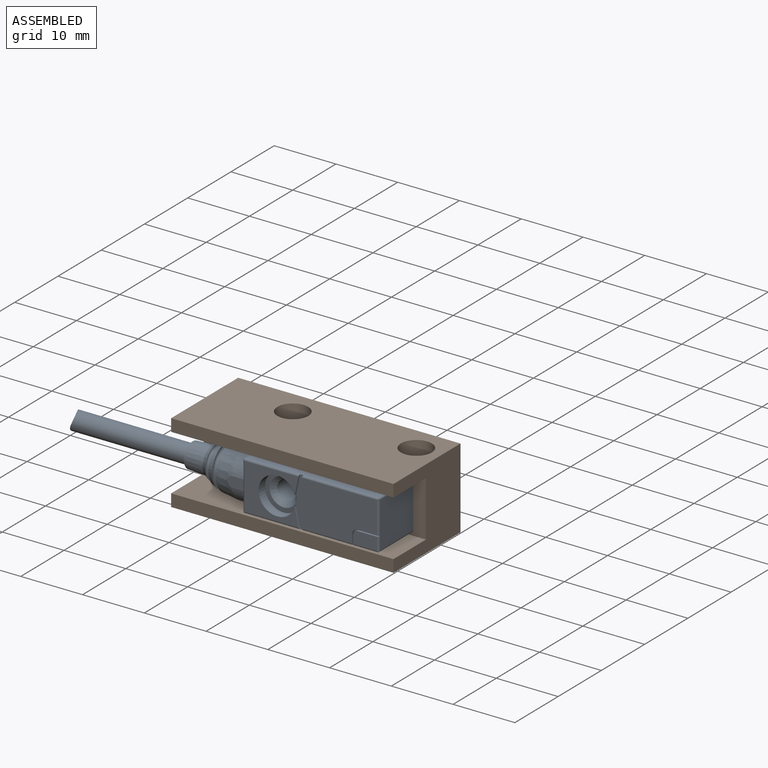
[diagram: assembled view]
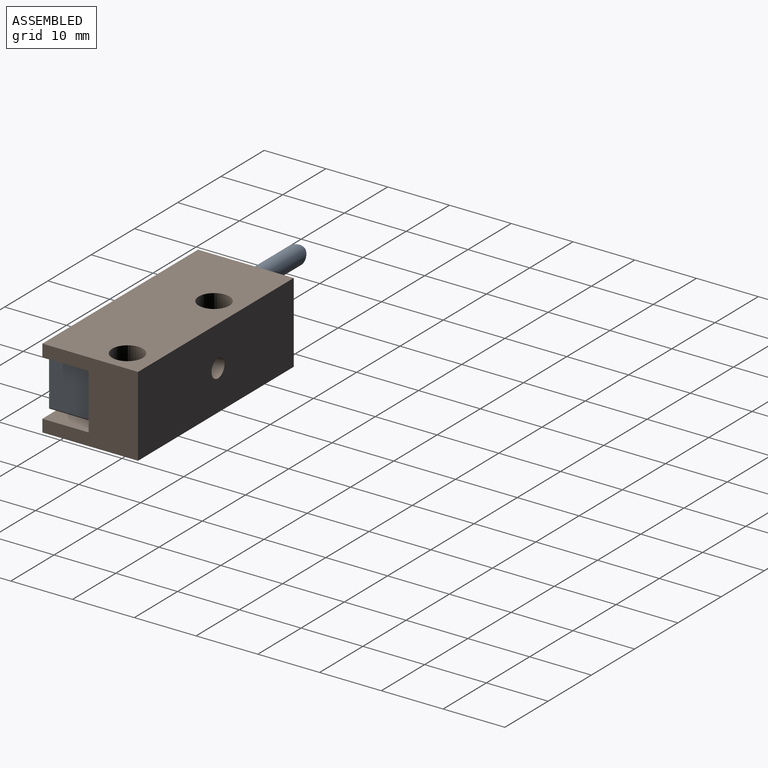
[diagram: assembled view, second angle]
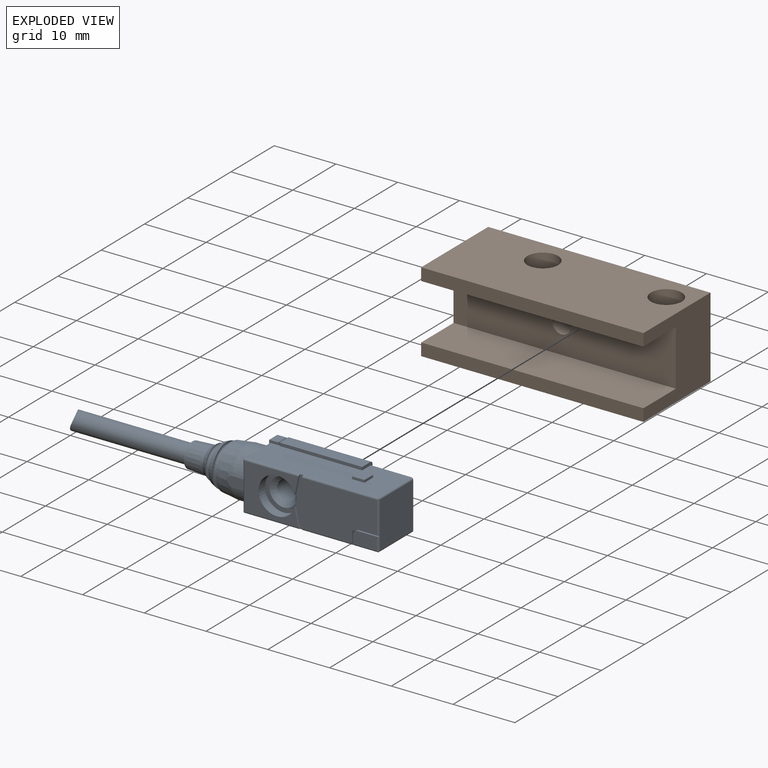
[diagram: exploded view]
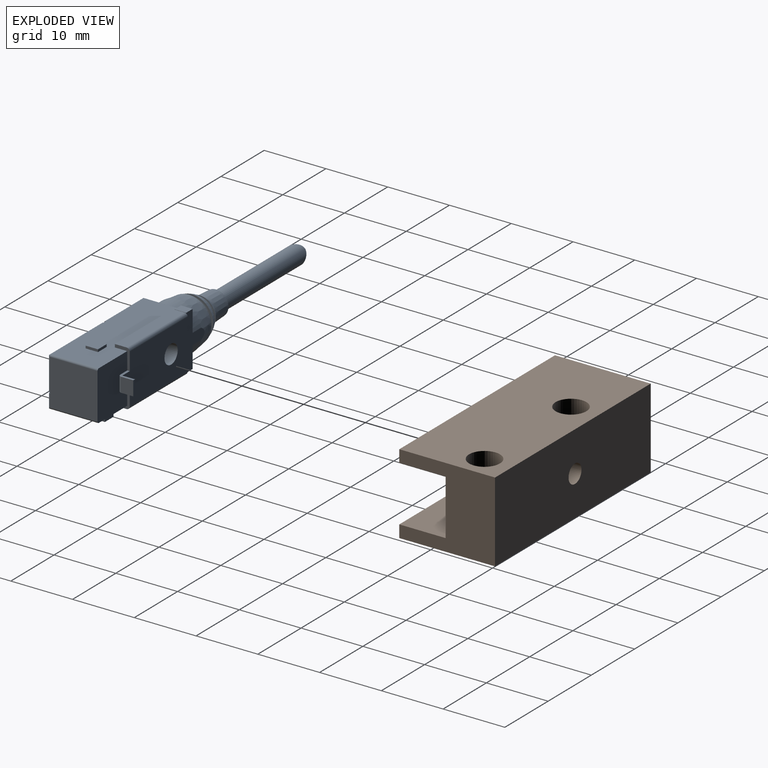
[diagram: exploded view, second angle]
ASSEMBLY  parts=2 mates=2
PART A: 95 faces, bbox 52.4x10.8x9.4 mm
  f0: torus R=3.14mm, axis (1,0,0), area 22.7mm2, adj f67,f68
  f1: torus R=2.56mm, axis (1,0,0), area 18.2mm2, adj f65,f66
  f2: cylinder r=3mm len=6mm, axis (0,1,0), area 27.7mm2, adj f78,f79,f82,f86,f87
  f3: cylinder r=1.5mm len=19mm, axis (1,0,0), area 174.9mm2, adj f8,f70
  f4: cone r=3.82mm half-angle=7.6deg, axis (1,0,0), area 64.2mm2, adj f61,f64,f68,f69,f92
  f5: cone r=3.23mm half-angle=22deg, axis (1,0,0), area 17.4mm2, adj f66,f67
  f6: cone r=2.41mm half-angle=32.3deg, axis (1,0,0), area 13.8mm2, adj f7,f65
  f7: cone r=2.08mm half-angle=3deg, axis (1,0,0), area 41.1mm2, adj f6,f70
  f8: cylinder r=2.1mm len=4.23mm, axis (0,-0.71,0.71), area 6.7mm2, adj f3
  f9: cylinder r=0.48mm len=13.4mm, axis (1,0,0), area 10.7mm2, adj f21,f23,f27,f28
  f10: cylinder r=0.48mm len=2.35mm, axis (0,0,1), area 1.9mm2, adj f13,f14,f15,f19
  f11: cylinder r=1.53mm len=6.18mm, axis (0,-1,0), area 59.4mm2, adj f12,f23
  f12: cone r=1.89mm half-angle=45deg, axis (0,1,0), area 12.1mm2, adj f11,f87
  f13: plane 2.44x2.1mm, normal (0,0,-1), area 1.6mm2, adj f10,f14,f15,f16,f17,f18,f23,f28
  f14: plane 2.35x0mm, normal (1,0,0), area 0mm2, adj f10,f13,f19,f30
  f15: plane 2.35x1.94mm, normal (1,0,0), area 4.6mm2, adj f10,f13,f16,f19
  f16: plane 2.35x0.4mm, normal (0,-1,0), area 0.9mm2, adj f13,f15,f17,f19
  f17: plane 2.35x1.94mm, normal (-1,0,0), area 4.6mm2, adj f13,f16,f18,f19
  f18: cylinder r=0.1mm len=2.35mm, axis (0,0,1), area 0.4mm2, adj f13,f17,f19,f23
  f19: plane 2.44x2.1mm, normal (0,0,1), area 1.6mm2, adj f10,f14,f15,f16,f17,f18,f20,f23
  f20: plane 3.33x2.4mm, normal (1,0,0), area 2.3mm2, adj f19,f23,f24,f25,f26,f29,f30
  f21: plane 9.01x2.4mm, normal (-1,0,0), area 5.5mm2, adj f9,f22,f23,f24,f25,f26,f27,f29
  f22: plane 13.4x0.5mm, normal (0,1,0), area 6.8mm2, adj f21,f27,f28,f93
  f23: plane 15x8.01mm, normal (0,-1,0), area 103.7mm2, adj f9,f11,f13,f18,f19,f20,f21,f24
  f24: cylinder r=0.5mm len=13.4mm, axis (1,0,0), area 10.5mm2, adj f20,f21,f23,f25
  f25: plane 13.4x1.9mm, normal (0,0,1), area 25.5mm2, adj f20,f21,f24,f26
  f26: plane 13.4x0.5mm, normal (0,1,0), area 6.8mm2, adj f20,f21,f25,f29
  f27: plane 13.4x1.9mm, normal (0,0,-1), area 25.5mm2, adj f9,f21,f22,f28
  f28: plane 3.33x2.4mm, normal (1,0,0), area 2.3mm2, adj f9,f13,f22,f23,f27,f30,f93
  f29: plane 21.4x7.7mm, normal (0,0,1), area 131.5mm2, adj f20,f21,f26,f30,f35,f37,f38,f44
  f30: plane 8.4x6.87mm, normal (0,-1,0), area 52mm2, adj f13,f14,f19,f20,f28,f29,f44,f45
  f31: plane 1.9x0.4mm, normal (1,0,0), area 0.8mm2, adj f32,f33,f92,f93
  f32: plane 1.9x1.5mm, normal (0,0,-1), area 2.9mm2, adj f31,f33,f74,f92
  f33: plane 1.5x0.7mm, normal (0,1,0), area 0.6mm2, adj f31,f32,f34,f74,f93
  f34: cylinder r=0.3mm len=1.85mm, axis (0,-1,0), area 0.5mm2, adj f33,f61,f74,f93
  f35: plane 1.9x0.4mm, normal (1,0,0), area 0.8mm2, adj f29,f36,f37,f92
  f36: plane 1.9x1.5mm, normal (0,0,1), area 2.9mm2, adj f35,f37,f73,f92
  f37: plane 1.5x0.7mm, normal (0,1,0), area 0.6mm2, adj f29,f35,f36,f38,f73
  f38: cylinder r=0.3mm len=1.85mm, axis (0,1,0), area 0.5mm2, adj f29,f37,f69,f73
  f39: plane 2x0.4mm, normal (1,0,0), area 0.8mm2, adj f40,f41,f43,f93
  f40: plane 2x0.4mm, normal (0,-1,0), area 0.8mm2, adj f39,f41,f42,f93
  f41: plane 2x2mm, normal (0,0,-1), area 4mm2, adj f39,f40,f42,f43
  f42: plane 2x0.4mm, normal (-1,0,0), area 0.8mm2, adj f40,f41,f43,f93
  f43: plane 2x0.4mm, normal (0,1,0), area 0.8mm2, adj f39,f41,f42,f93
  f44: plane 2x0.4mm, normal (-1,0,0), area 0.8mm2, adj f29,f30,f45,f46
  f45: plane 2x2mm, normal (0,0,1), area 4mm2, adj f30,f44,f46,f47
  f46: plane 2x0.4mm, normal (0,1,0), area 0.8mm2, adj f29,f44,f45,f47
  f47: plane 2x0.4mm, normal (1,0,0), area 0.8mm2, adj f29,f30,f45,f46
  f48: plane 3.35x0.3mm, normal (0,0,-1), area 1mm2, adj f49,f54,f56,f58
  f49: cylinder r=0.75mm len=0.75mm, axis (0,1,0), area 0.4mm2, adj f48,f50,f54,f58
  f50: plane 1.6x0.3mm, normal (-1,0,0), area 0.5mm2, adj f49,f54,f58,f60
  f51: plane 1.6x0.3mm, normal (1,0,0), area 0.5mm2, adj f52,f54,f57,f59
  f52: cylinder r=0.95mm len=0.95mm, axis (0,1,0), area 0.4mm2, adj f51,f53,f54,f57
  f53: plane 3.35x0.3mm, normal (0,0,1), area 1mm2, adj f52,f54,f55,f57
  f54: plane 4.3x2.55mm, normal (0,1,0), area 1.3mm2, adj f29,f48,f49,f50,f51,f52,f53,f91
  f55: cylinder r=0.3mm len=5.37mm, axis (0,0,1), area 2.5mm2, adj f53,f57,f88,f89,f91
  f56: cylinder r=0.3mm len=2.26mm, axis (0,0,1), area 1mm2, adj f48,f58,f60,f91,f94
  f57: plane 12.8x7.4mm, normal (0,1,0), area 83.5mm2, adj f51,f52,f53,f55,f59,f77,f81,f88
  f58: plane 3.8x2.05mm, normal (0,1,0), area 7.7mm2, adj f48,f49,f50,f56,f60
  f59: cylinder r=0.3mm len=8.13mm, axis (1,0,0), area 3.8mm2, adj f29,f51,f57,f77
  f60: cylinder r=0.3mm len=4.01mm, axis (1,0,0), area 1.8mm2, adj f29,f50,f56,f58,f94
  f61: cylinder r=4mm len=7.81mm, axis (1,0,0), area 22.2mm2, adj f4,f34,f63,f64,f71,f74,f75,f90
  f62: plane 0.29x0mm, normal (1,0,0), area 0mm2, adj f29,f69
  f63: plane 0.29x0mm, normal (1,0,0), area 0mm2, adj f61,f93
  f64: plane 3.13x2.07mm, normal (0,1,0), area 4.2mm2, adj f4,f61,f69,f71
  f65: plane 5.31x5.31mm, normal (1,0,0), area 1.5mm2, adj f1,f6
  f66: plane 6.13x6.13mm, normal (-1,0,0), area 8.9mm2, adj f1,f5
  f67: plane 6.77x6.77mm, normal (1,0,0), area 5mm2, adj f0,f5
  f68: plane 7.29x7.29mm, normal (-1,0,0), area 10.7mm2, adj f0,f4
  f69: cylinder r=4mm len=7.81mm, axis (1,0,0), area 22.2mm2, adj f4,f29,f38,f62,f64,f71,f72,f73
  f70: plane 4x4mm, normal (-1,0,0), area 5.5mm2, adj f3,f7
  f71: cylinder r=0.3mm len=7.82mm, axis (0,0,-1), area 3.3mm2, adj f61,f64,f69,f72,f75,f76,f84,f85
  f72: plane 2.44x2.27mm, normal (-1,0,0), area 2mm2, adj f69,f71,f76
  f73: plane 3.5x2.37mm, normal (-1,0,0), area 3.5mm2, adj f36,f37,f38,f69,f92
  f74: plane 3.5x2.37mm, normal (-1,0,0), area 3.5mm2, adj f32,f33,f34,f61,f92
  f75: plane 2.44x2.27mm, normal (-1,0,0), area 2mm2, adj f61,f71,f90
  f76: cylinder r=0.3mm len=3.87mm, axis (0,1,0), area 1.4mm2, adj f29,f69,f71,f72,f84
  f77: plane 4.02x0.74mm, normal (-0.98,0,0.18), area 1.2mm2, adj f57,f59,f79,f81
  f78: plane 3.14x0.69mm, normal (0.98,0,-0.21), area 0.9mm2, adj f2,f79,f84,f86
  f79: plane 8x1.2mm, normal (0,1,0), area 4.5mm2, adj f2,f29,f77,f78,f80,f81,f82,f83
  f80: plane 0.05x0mm, normal (-1,0,0), area 0mm2, adj f79,f81,f88
  f81: plane 4.01x0.74mm, normal (-0.98,0,-0.18), area 1.2mm2, adj f57,f77,f79,f80,f88
  f82: plane 3.13x0.68mm, normal (0.98,0,0.21), area 0.9mm2, adj f2,f79,f83,f85,f86
  f83: plane 0.05x0mm, normal (1,0,0), area 0mm2, adj f79,f82,f85
  f84: cylinder r=0.3mm len=8.99mm, axis (1,0,0), area 4.2mm2, adj f29,f71,f76,f78,f86
  f85: cylinder r=0.3mm len=8.99mm, axis (1,0,0), area 4.2mm2, adj f71,f82,f83,f86,f90,f93
  f86: plane 8.72x7.4mm, normal (0,1,0), area 33.6mm2, adj f2,f71,f78,f82,f84,f85
  f87: plane 6x6mm, normal (0,1,0), area 12.4mm2, adj f2,f12
  f88: cylinder r=0.3mm len=12.35mm, axis (1,0,0), area 5.8mm2, adj f55,f57,f80,f81,f89,f93
  f89: cylinder r=0.3mm len=7.91mm, axis (0,1,0), area 3.7mm2, adj f30,f55,f88,f91,f93
  f90: cylinder r=0.3mm len=3.87mm, axis (0,-1,0), area 1.4mm2, adj f61,f71,f75,f85,f93
  f91: plane 7.7x7.4mm, normal (1,0,0), area 57mm2, adj f30,f54,f55,f56,f89,f94
  f92: plane 8.8x4.79mm, normal (0,-1,0), area 19.6mm2, adj f4,f21,f29,f31,f32,f35,f36,f61
  f93: plane 21.4x7.7mm, normal (0,0,-1), area 131.5mm2, adj f21,f22,f28,f30,f31,f33,f34,f39
  f94: cylinder r=0.3mm len=7.91mm, axis (0,-1,0), area 3.7mm2, adj f29,f30,f56,f60,f91
PART B: 13 faces, bbox 36x15.5x13 mm
  f0: plane 36x2mm, normal (0,-1,0), area 72mm2, adj f3,f5,f10,f12
  f1: plane 36x2mm, normal (0,-1,0), area 72mm2, adj f2,f4,f10,f12
  f2: plane 36x15.5mm, normal (0,0,1), area 518.7mm2, adj f1,f8,f9,f10,f11,f12
  f3: plane 36x15.5mm, normal (0,0,-1), area 518.7mm2, adj f0,f8,f9,f10,f11,f12
  f4: plane 36x7.5mm, normal (0,0,-1), area 270mm2, adj f1,f6,f10,f12
  f5: plane 36x7.5mm, normal (0,0,1), area 270mm2, adj f0,f6,f10,f12
  f6: plane 36x9mm, normal (0,-1,0), area 316.9mm2, adj f4,f5,f7,f10,f12
  f7: cylinder r=1.5mm len=8mm, axis (0,-1,0), area 75.4mm2, adj f6,f11
  f8: cylinder r=2.5mm len=13mm, axis (0,0,1), area 204.2mm2, adj f2,f3
  f9: cylinder r=2.5mm len=13mm, axis (0,0,1), area 204.2mm2, adj f2,f3
  f10: plane 15.5x13mm, normal (1,0,0), area 134mm2, adj f0,f1,f2,f3,f4,f5,f6,f11
  f11: plane 36x13mm, normal (0,1,0), area 460.9mm2, adj f2,f3,f7,f10,f12
  f12: plane 15.5x13mm, normal (-1,0,0), area 134mm2, adj f0,f1,f2,f3,f4,f5,f6,f11
PLACE A rot(axis=(1,0,0),180deg) t=(-23.13,-4.75,4.56)mm
PLACE B t=(-4.79,-2.75,-11.64)mm
MATE planar A.f30 <-> B.f6  axis (0,1,0) through (-4.72,-4.75,8.56)mm
MATE cylindrical A.f2 <-> B.f7  axis (0,1,0) through (-17.58,-10.53,4.56)mm
